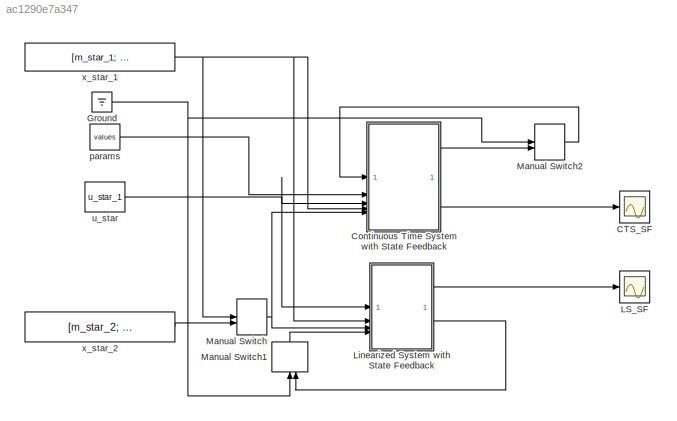
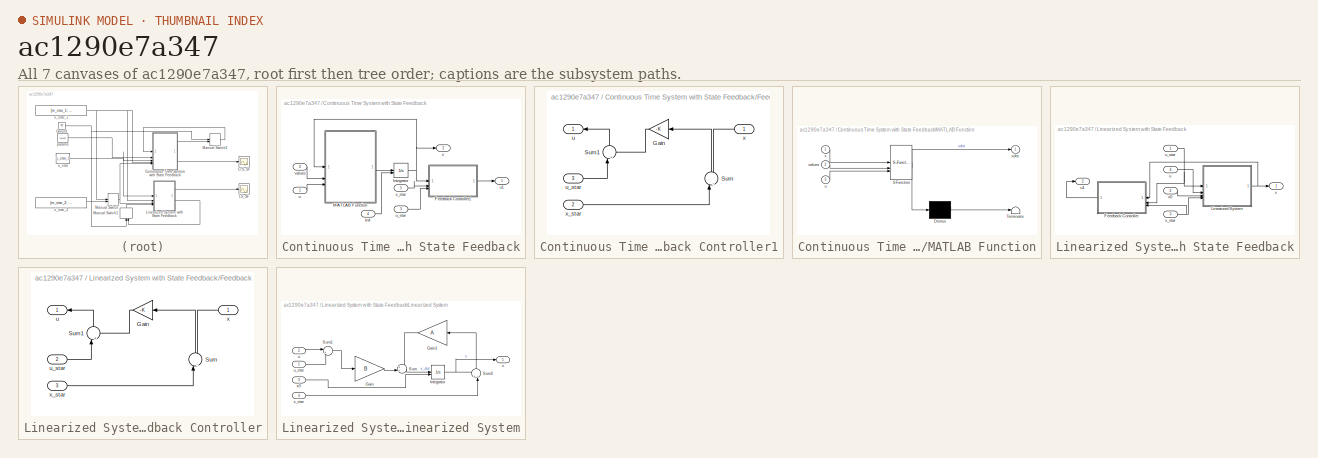
[diagram: thumbnail index - all 7 canvases of the model, root first then tree order]
MODEL slx_ac1290e7a347
KIND model
CONFIG AbsTol = auto
CONFIG EnableMultiTasking = off
CONFIG FixedStep = 0.001
CONFIG MaxStep = auto
CONFIG MinStep = auto
CONFIG RelTol = 1e-3
CONFIG SampleTimeConstraint = Unconstrained
CONFIG SolverName = FixedStepAuto
CONFIG StartTime = 0.0
CONFIG StopTime = 15
BLOCK [Scope] CTS_SF
  Floating = off
  NumInputPorts = 1
  ScopeSpecificationString = Simulink.scopes.TimeScopeBlockCfg('CurrentConfiguration', extmgr.ConfigurationSet(extmgr.Configuration('Core','General UI',true),extmgr.Configuration('Core','Source UI',true),extmgr.Configuration('Sources','WiredSimulink',true,'DataLoggingVariableName','ScopeData1'),extmgr.Configuration('Visuals','Time Domain',true,'SerializedDisplays',{struct('MinYLimReal','-341.0277','MaxYLimReal','524.18947','Y...<+1689ch>
BLOCK [SubSystem] Continuous Time System with State Feedback
BLOCK [SubSystem] Continuous Time System with State Feedback/Feedback Controller1
BLOCK [Gain] Continuous Time System with State Feedback/Feedback Controller1/Gain
  Gain = -K
  Multiplication = Matrix(K*u)
  NameLocation = top
BLOCK [Sum] Continuous Time System with State Feedback/Feedback Controller1/Sum
  Inputs = |-+
  NameLocation = right
BLOCK [Sum] Continuous Time System with State Feedback/Feedback Controller1/Sum1
  Inputs = |++
  NameLocation = right
BLOCK [Outport] Continuous Time System with State Feedback/Feedback Controller1/u
  NameLocation = top
BLOCK [Inport] Continuous Time System with State Feedback/Feedback Controller1/u_star
  Port = 3
BLOCK [Inport] Continuous Time System with State Feedback/Feedback Controller1/x
  NameLocation = top
BLOCK [Inport] Continuous Time System with State Feedback/Feedback Controller1/x_star
  Port = 2
BLOCK [Inport] Continuous Time System with State Feedback/In4
  Port = 4
BLOCK [Integrator] Continuous Time System with State Feedback/Integrator
  InitialConditionSource = external
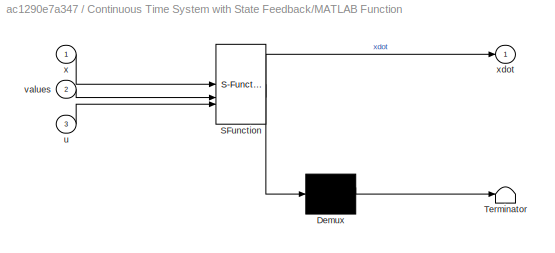
BLOCK [SubSystem] Continuous Time System with State Feedback/MATLAB Function
  ErrorFcn = Stateflow.Translate.translate
  PermitHierarchicalResolution = ExplicitOnly
  SFBlockType = MATLAB Function
  TreatAsAtomicUnit = on
BLOCK [Demux] Continuous Time System with State Feedback/MATLAB Function/ Demux 
  Outputs = 1
BLOCK [S-Function] Continuous Time System with State Feedback/MATLAB Function/ SFunction 
  EnableBusSupport = on
  FunctionName = sf_sfun
  PortCounts = [3 2]
  SFcnIsStateOwnerBlock = off
  SFunctionDeploymentMode = off
  Tag = Stateflow S-Function 2
BLOCK [Terminator] Continuous Time System with State Feedback/MATLAB Function/ Terminator 
BLOCK [Inport] Continuous Time System with State Feedback/MATLAB Function/u
  Port = 3
BLOCK [Inport] Continuous Time System with State Feedback/MATLAB Function/values
  Port = 2
BLOCK [Inport] Continuous Time System with State Feedback/MATLAB Function/x
BLOCK [Outport] Continuous Time System with State Feedback/MATLAB Function/xdot
BLOCK [Inport] Continuous Time System with State Feedback/u
BLOCK [Outport] Continuous Time System with State Feedback/u1
BLOCK [Inport] Continuous Time System with State Feedback/u_star
  Port = 3
BLOCK [Inport] Continuous Time System with State Feedback/values
  Port = 2
BLOCK [Outport] Continuous Time System with State Feedback/x
  Port = 2
BLOCK [Inport] Continuous Time System with State Feedback/x_star
  Port = 5
BLOCK [Ground] Ground
BLOCK [Scope] LS_SF
  Floating = off
  NumInputPorts = 1
  ScopeSpecificationString = Simulink.scopes.TimeScopeBlockCfg('CurrentConfiguration', extmgr.ConfigurationSet(extmgr.Configuration('Core','General UI',true),extmgr.Configuration('Core','Source UI',true),extmgr.Configuration('Sources','WiredSimulink',true),extmgr.Configuration('Visuals','Time Domain',true,'SerializedDisplays',{struct('MinYLimReal','-16.38534','MaxYLimReal','496.64074','YLabelReal','','MinYLimMag','0.00000','M...<+1626ch>
BLOCK [SubSystem] Linearized System with State Feedback
BLOCK [SubSystem] Linearized System with State Feedback/Feedback Controller
  NameLocation = top
BLOCK [Gain] Linearized System with State Feedback/Feedback Controller/Gain
  Gain = -K
  Multiplication = Matrix(K*u)
  NameLocation = top
BLOCK [Sum] Linearized System with State Feedback/Feedback Controller/Sum
  Inputs = |-+
  NameLocation = right
BLOCK [Sum] Linearized System with State Feedback/Feedback Controller/Sum1
  Inputs = |++
  NameLocation = right
BLOCK [Outport] Linearized System with State Feedback/Feedback Controller/u
  NameLocation = top
BLOCK [Inport] Linearized System with State Feedback/Feedback Controller/u_star
  Port = 2
BLOCK [Inport] Linearized System with State Feedback/Feedback Controller/x
  NameLocation = top
BLOCK [Inport] Linearized System with State Feedback/Feedback Controller/x_star
  Port = 3
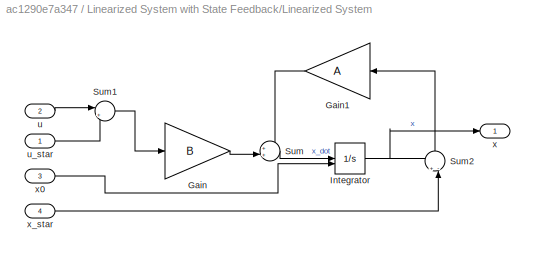
BLOCK [SubSystem] Linearized System with State Feedback/Linearized System
BLOCK [Gain] Linearized System with State Feedback/Linearized System/Gain
  Gain = B
  Multiplication = Matrix(K*u) (u vector)
BLOCK [Gain] Linearized System with State Feedback/Linearized System/Gain1
  Gain = A
  Multiplication = Matrix(K*u) (u vector)
BLOCK [Integrator] Linearized System with State Feedback/Linearized System/Integrator
  InitialCondition = [0.5;0]
  InitialConditionSource = external
BLOCK [Sum] Linearized System with State Feedback/Linearized System/Sum
  Inputs = ++|
BLOCK [Sum] Linearized System with State Feedback/Linearized System/Sum1
  Inputs = |+-
BLOCK [Sum] Linearized System with State Feedback/Linearized System/Sum2
  Inputs = +-|
  NameLocation = right
BLOCK [Inport] Linearized System with State Feedback/Linearized System/u
  Port = 2
BLOCK [Inport] Linearized System with State Feedback/Linearized System/u_star
BLOCK [Outport] Linearized System with State Feedback/Linearized System/x
BLOCK [Inport] Linearized System with State Feedback/Linearized System/x0
  Port = 3
BLOCK [Inport] Linearized System with State Feedback/Linearized System/x_star
  Port = 4
BLOCK [Inport] Linearized System with State Feedback/u
  Port = 4
BLOCK [Outport] Linearized System with State Feedback/u1
  Port = 2
BLOCK [Inport] Linearized System with State Feedback/u_star
BLOCK [Outport] Linearized System with State Feedback/x
BLOCK [Inport] Linearized System with State Feedback/x0
  Port = 2
BLOCK [Inport] Linearized System with State Feedback/x_star
  Port = 3
BLOCK [ManualSwitch] Manual Switch
  CurrentSetting = 0
BLOCK [ManualSwitch] Manual Switch1
  CurrentSetting = 0
  NameLocation = right
BLOCK [ManualSwitch] Manual Switch2
  CurrentSetting = 0
BLOCK [Constant] params
  Value = values
BLOCK [Constant] u_star
  Value = u_star_1
BLOCK [Constant] x_star_1
  Value = [m_star_1; omega_star_1]
BLOCK [Constant] x_star_2
  Value = [m_star_2; omega_star_2]
LINE Continuous Time System with State Feedback/Feedback Controller1/Gain:1 -> Continuous Time System with State Feedback/Feedback Controller1/Sum1:2
LINE Continuous Time System with State Feedback/Feedback Controller1/Sum1:1 -> Continuous Time System with State Feedback/Feedback Controller1/u:1
LINE Continuous Time System with State Feedback/Feedback Controller1/Sum:1 -> Continuous Time System with State Feedback/Feedback Controller1/Gain:1
LINE Continuous Time System with State Feedback/Feedback Controller1/u_star:1 -> Continuous Time System with State Feedback/Feedback Controller1/Sum1:1
LINE Continuous Time System with State Feedback/Feedback Controller1/x:1 -> Continuous Time System with State Feedback/Feedback Controller1/Sum:2
LINE Continuous Time System with State Feedback/Feedback Controller1/x_star:1 -> Continuous Time System with State Feedback/Feedback Controller1/Sum:1
LINE Continuous Time System with State Feedback/Feedback Controller1:1 -> Continuous Time System with State Feedback/u1:1
LINE Continuous Time System with State Feedback/In4:1 -> Continuous Time System with State Feedback/Integrator:2
NET Continuous Time System with State Feedback/Integrator:1 -> Continuous Time System with State Feedback/Feedback Controller1:1, Continuous Time System with State Feedback/MATLAB Function:1, Continuous Time System with State Feedback/x:1
LINE Continuous Time System with State Feedback/MATLAB Function:1 -> Continuous Time System with State Feedback/Integrator:1
LINE Continuous Time System with State Feedback/u:1 -> Continuous Time System with State Feedback/MATLAB Function:3
LINE Continuous Time System with State Feedback/u_star:1 -> Continuous Time System with State Feedback/Feedback Controller1:3
LINE Continuous Time System with State Feedback/values:1 -> Continuous Time System with State Feedback/MATLAB Function:2
LINE Continuous Time System with State Feedback/x_star:1 -> Continuous Time System with State Feedback/Feedback Controller1:2
LINE Continuous Time System with State Feedback:1 -> Manual Switch2:2
LINE Continuous Time System with State Feedback:2 -> CTS_SF:1
NET Ground:1 -> Manual Switch1:1, Manual Switch2:1
LINE Linearized System with State Feedback/Feedback Controller/Gain:1 -> Linearized System with State Feedback/Feedback Controller/Sum1:2
LINE Linearized System with State Feedback/Feedback Controller/Sum1:1 -> Linearized System with State Feedback/Feedback Controller/u:1
LINE Linearized System with State Feedback/Feedback Controller/Sum:1 -> Linearized System with State Feedback/Feedback Controller/Gain:1
LINE Linearized System with State Feedback/Feedback Controller/u_star:1 -> Linearized System with State Feedback/Feedback Controller/Sum1:1
LINE Linearized System with State Feedback/Feedback Controller/x:1 -> Linearized System with State Feedback/Feedback Controller/Sum:2
LINE Linearized System with State Feedback/Feedback Controller/x_star:1 -> Linearized System with State Feedback/Feedback Controller/Sum:1
LINE Linearized System with State Feedback/Feedback Controller:1 -> Linearized System with State Feedback/u1:1
LINE Linearized System with State Feedback/Linearized System/Gain1:1 -> Linearized System with State Feedback/Linearized System/Sum:1
LINE Linearized System with State Feedback/Linearized System/Gain:1 -> Linearized System with State Feedback/Linearized System/Sum:2
NET Linearized System with State Feedback/Linearized System/Integrator:1 -> Linearized System with State Feedback/Linearized System/Sum2:1, Linearized System with State Feedback/Linearized System/x:1
LINE Linearized System with State Feedback/Linearized System/Sum1:1 -> Linearized System with State Feedback/Linearized System/Gain:1
LINE Linearized System with State Feedback/Linearized System/Sum2:1 -> Linearized System with State Feedback/Linearized System/Gain1:1
LINE Linearized System with State Feedback/Linearized System/Sum:1 -> Linearized System with State Feedback/Linearized System/Integrator:1
LINE Linearized System with State Feedback/Linearized System/u:1 -> Linearized System with State Feedback/Linearized System/Sum1:1
LINE Linearized System with State Feedback/Linearized System/u_star:1 -> Linearized System with State Feedback/Linearized System/Sum1:2
LINE Linearized System with State Feedback/Linearized System/x0:1 -> Linearized System with State Feedback/Linearized System/Integrator:2
LINE Linearized System with State Feedback/Linearized System/x_star:1 -> Linearized System with State Feedback/Linearized System/Sum2:2
NET Linearized System with State Feedback/Linearized System:1 -> Linearized System with State Feedback/Feedback Controller:1, Linearized System with State Feedback/x:1
LINE Linearized System with State Feedback/u:1 -> Linearized System with State Feedback/Linearized System:2
NET Linearized System with State Feedback/u_star:1 -> Linearized System with State Feedback/Feedback Controller:2, Linearized System with State Feedback/Linearized System:1
LINE Linearized System with State Feedback/x0:1 -> Linearized System with State Feedback/Linearized System:3
NET Linearized System with State Feedback/x_star:1 -> Linearized System with State Feedback/Feedback Controller:3, Linearized System with State Feedback/Linearized System:4
LINE Linearized System with State Feedback:1 -> LS_SF:1
LINE Linearized System with State Feedback:2 -> Manual Switch1:2
LINE Manual Switch1:1 -> Linearized System with State Feedback:4
LINE Manual Switch2:1 -> Continuous Time System with State Feedback:1
NET Manual Switch:1 -> Continuous Time System with State Feedback:5, Linearized System with State Feedback:3
LINE params:1 -> Continuous Time System with State Feedback:2
NET u_star:1 -> Continuous Time System with State Feedback:3, Linearized System with State Feedback:1
NET x_star_1:1 -> Continuous Time System with State Feedback:4, Linearized System with State Feedback:2, Manual Switch:1
LINE x_star_2:1 -> Manual Switch:2
note: NET lines group one-source signal fan-out (src -> all destinations, sorted); 1:1 wires keep LINE
CHART Continuous Time System with State Feedback/MATLAB Function states=1 transitions=1
  STATE_LABEL 'eML_blk_kernel()'
  STATE_LABEL 'SCRIPT:\nfunction xdot = fcn(x, values, u)\n\nq1 = values(1);\nq2 = values(2);\nq3 = values(3);\nJ = values(4);\n\nxdot = [-q1*x(2)*x(1) + u;\n         q2/J*x(1) - q3/J*x(2)];'
CHART  states=0 transitions=0
